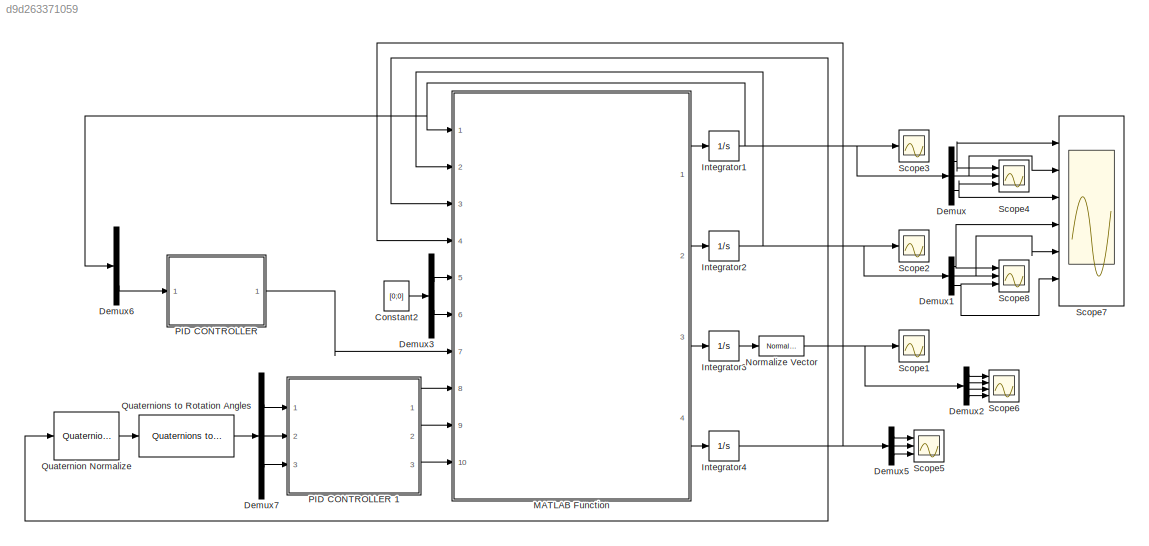
MODEL slx_d9d263371059
KIND model
CONFIG AbsTol = auto
CONFIG EnableMultiTasking = off
CONFIG FixedStep = auto
CONFIG MaxStep = auto
CONFIG MinStep = auto
CONFIG RelTol = 1e-3
CONFIG SampleTimeConstraint = Unconstrained
CONFIG SolverName = VariableStepAuto
CONFIG StartTime = 0.0
CONFIG StopTime = 50
BLOCK [Constant] Constant2
  Value = [0;0]
  VectorParams1D = off
BLOCK [Demux] Demux
  Outputs = 3
  Ports = [1, 3]
BLOCK [Demux] Demux1
  Outputs = 3
  Ports = [1, 3]
BLOCK [Demux] Demux2
  Ports = [1, 4]
BLOCK [Demux] Demux3
  Outputs = 2
  Ports = [1, 2]
BLOCK [Demux] Demux5
  Outputs = 3
  Ports = [1, 3]
BLOCK [Demux] Demux6
  Outputs = 3
  Ports = [1, 3]
BLOCK [Demux] Demux7
  Outputs = 3
  Ports = [1, 3]
BLOCK [Integrator] Integrator1
  InitialCondition = [0;0;0]
  Ports = [1, 1]
BLOCK [Integrator] Integrator2
  InitialCondition = [0;0;0]
  Ports = [1, 1]
BLOCK [Integrator] Integrator3
  InitialCondition = [1;0;0;0]
  Ports = [1, 1]
BLOCK [Integrator] Integrator4
  InitialCondition = [0;0;0]
  Ports = [1, 1]
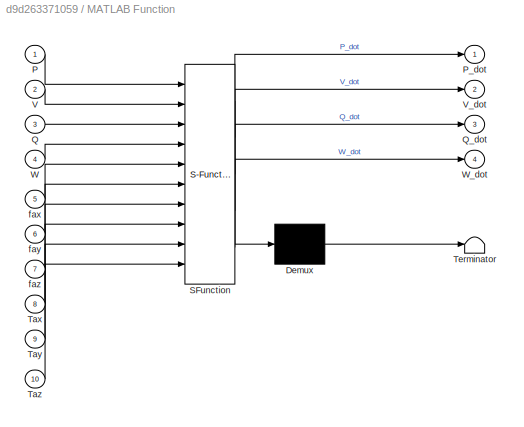
BLOCK [SubSystem] MATLAB Function
  ErrorFcn = Stateflow.Translate.translate
  PermitHierarchicalResolution = ExplicitOnly
  Ports = [10, 4]
  RequestExecContextInheritance = off
  SFBlockType = MATLAB Function
  TreatAsAtomicUnit = on
BLOCK [Demux] MATLAB Function/ Demux 
  Outputs = 1
  Ports = [1, 1]
BLOCK [S-Function] MATLAB Function/ SFunction 
  EnableBusSupport = on
  FunctionName = sf_sfun
  PortCounts = [10 5]
  Ports = [10, 5]
  SFcnIsStateOwnerBlock = off
  SFunctionDeploymentMode = off
  Tag = Stateflow S-Function 2
BLOCK [Terminator] MATLAB Function/ Terminator 
BLOCK [Inport] MATLAB Function/P
BLOCK [Outport] MATLAB Function/P_dot
BLOCK [Inport] MATLAB Function/Q
  Port = 3
BLOCK [Outport] MATLAB Function/Q_dot
  Port = 3
BLOCK [Inport] MATLAB Function/Tax
  Port = 8
BLOCK [Inport] MATLAB Function/Tay
  Port = 9
BLOCK [Inport] MATLAB Function/Taz
  Port = 10
BLOCK [Inport] MATLAB Function/V
  Port = 2
BLOCK [Outport] MATLAB Function/V_dot
  Port = 2
BLOCK [Inport] MATLAB Function/W
  Port = 4
BLOCK [Outport] MATLAB Function/W_dot
  Port = 4
BLOCK [Inport] MATLAB Function/fax
  Port = 5
BLOCK [Inport] MATLAB Function/fay
  Port = 6
BLOCK [Inport] MATLAB Function/faz
  Port = 7
BLOCK [Reference] Normalize Vector  REF=vrlib/Utilities/Normalize Vector
  Ports = [1, 1]
  SourceBlock = vrlib/Utilities/Normalize Vector
  SourceProductBaseCode = SL
  SourceType = Normalize Vector
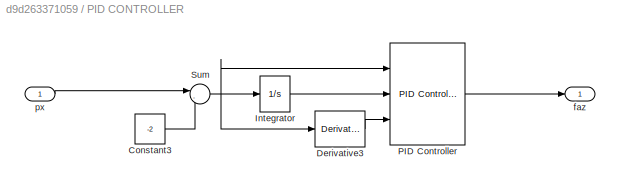
BLOCK [SubSystem] PID CONTROLLER 
  Ports = [1, 1]
  RequestExecContextInheritance = off
BLOCK [Constant] PID CONTROLLER /Constant3
  Value = -2
  VectorParams1D = off
BLOCK [Derivative] PID CONTROLLER /Derivative3
BLOCK [Integrator] PID CONTROLLER /Integrator
  NameLocation = right
  Ports = [1, 1]
BLOCK [Reference] PID CONTROLLER /PID Controller  REF=pid_lib/PID Controller
  Ports = [3, 1]
  SourceBlock = pid_lib/PID Controller
  SourceProductBaseCode = SL
  SourceType = PID 1dof
BLOCK [Sum] PID CONTROLLER /Sum
  Inputs = |-+
  Ports = [2, 1]
BLOCK [Outport] PID CONTROLLER /faz
BLOCK [Inport] PID CONTROLLER /px
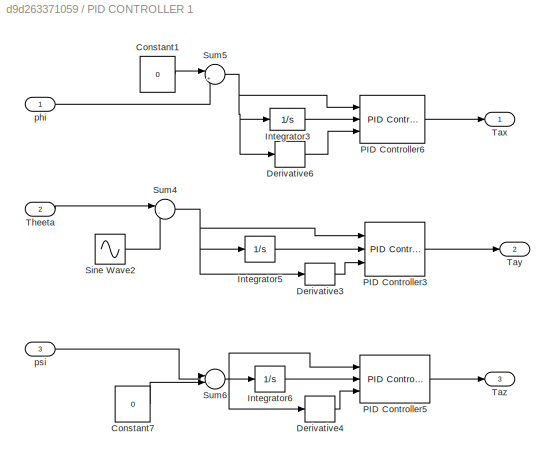
BLOCK [SubSystem] PID CONTROLLER 1
  Ports = [3, 3]
  RequestExecContextInheritance = off
BLOCK [Constant] PID CONTROLLER 1/Constant1
  Value = 0
  VectorParams1D = off
BLOCK [Constant] PID CONTROLLER 1/Constant7
  Value = 0
  VectorParams1D = off
BLOCK [Derivative] PID CONTROLLER 1/Derivative3
BLOCK [Derivative] PID CONTROLLER 1/Derivative4
BLOCK [Derivative] PID CONTROLLER 1/Derivative6
BLOCK [Integrator] PID CONTROLLER 1/Integrator3
  NameLocation = right
  Ports = [1, 1]
BLOCK [Integrator] PID CONTROLLER 1/Integrator5
  NameLocation = right
  Ports = [1, 1]
BLOCK [Integrator] PID CONTROLLER 1/Integrator6
  NameLocation = right
  Ports = [1, 1]
BLOCK [Reference] PID CONTROLLER 1/PID Controller3  REF=pid_lib/PID Controller
  Ports = [3, 1]
  SourceBlock = pid_lib/PID Controller
  SourceProductBaseCode = SL
  SourceType = PID 1dof
BLOCK [Reference] PID CONTROLLER 1/PID Controller5  REF=pid_lib/PID Controller
  Ports = [3, 1]
  SourceBlock = pid_lib/PID Controller
  SourceProductBaseCode = SL
  SourceType = PID 1dof
BLOCK [Reference] PID CONTROLLER 1/PID Controller6  REF=pid_lib/PID Controller
  Ports = [3, 1]
  SourceBlock = pid_lib/PID Controller
  SourceProductBaseCode = SL
  SourceType = PID 1dof
BLOCK [Sin] PID CONTROLLER 1/Sine Wave2
  Amplitude = 0.1
  Frequency = 2*pi*0.1
  Ports = [0, 1]
  SampleTime = 0
BLOCK [Sum] PID CONTROLLER 1/Sum4
  Inputs = |-+
  Ports = [2, 1]
BLOCK [Sum] PID CONTROLLER 1/Sum5
  Inputs = |+-
  Ports = [2, 1]
BLOCK [Sum] PID CONTROLLER 1/Sum6
  Inputs = |-+
  Ports = [2, 1]
BLOCK [Outport] PID CONTROLLER 1/Tax
BLOCK [Outport] PID CONTROLLER 1/Tay
  Port = 2
BLOCK [Outport] PID CONTROLLER 1/Taz
  Port = 3
BLOCK [Inport] PID CONTROLLER 1/Theeta
  Port = 2
BLOCK [Inport] PID CONTROLLER 1/phi
BLOCK [Inport] PID CONTROLLER 1/psi
  Port = 3
BLOCK [Reference] Quaternion Normalize  REF=sharedutil/Quaternion
Normalize
  Ports = [1, 1]
  SourceBlock = sharedutil/Quaternion\nNormalize
  SourceProductBaseCode = AE,PW,DR,MT,UV,VE
  SourceType = Quaternion Normalize
BLOCK [Reference] Quaternions to Rotation Angles  REF=sharedtransform/Quaternions to Rotation Angles
  AttributesFormatString = Rotation Order: %<rotationOrder>
  Ports = [1, 1]
  SourceBlock = sharedtransform/Quaternions to Rotation Angles
  SourceProductBaseCode = AE,PW,DR,MT,UV,VE
  SourceType = Quat2Ang
BLOCK [Scope] Scope1
  Floating = off
  NumInputPorts = 1
  Ports = [1]
  ScopeSpecificationString = Simulink.scopes.TimeScopeBlockCfg('CurrentConfiguration', extmgr.ConfigurationSet(extmgr.Configuration('Core','General UI',true),extmgr.Configuration('Core','Source UI',true),extmgr.Configuration('Sources','WiredSimulink',true,'DataLoggingVariableName','ScopeData1'),extmgr.Configuration('Visuals','Time Domain',true,'SerializedDisplays',{struct('MinYLimReal','-0.18212','MaxYLimReal','1.13135','YLab...<+1440ch>
BLOCK [Scope] Scope2
  Floating = off
  NumInputPorts = 1
  Ports = [1]
  ScopeSpecificationString = Simulink.scopes.TimeScopeBlockCfg('CurrentConfiguration', extmgr.ConfigurationSet(extmgr.Configuration('Core','General UI',true),extmgr.Configuration('Core','Source UI',true),extmgr.Configuration('Sources','WiredSimulink',true,'DataLoggingVariableName','ScopeData2'),extmgr.Configuration('Visuals','Time Domain',true,'SerializedDisplays',{struct('MinYLimReal','-0.71145','MaxYLimReal','0.65564','YLab...<+1404ch>
BLOCK [Scope] Scope3
  Floating = off
  NumInputPorts = 1
  Ports = [1]
  ScopeSpecificationString = Simulink.scopes.TimeScopeBlockCfg('CurrentConfiguration', extmgr.ConfigurationSet(extmgr.Configuration('Core','General UI',true),extmgr.Configuration('Core','Source UI',true),extmgr.Configuration('Sources','WiredSimulink',true,'DataLoggingVariableName','ScopeData3'),extmgr.Configuration('Visuals','Time Domain',true,'SerializedDisplays',{struct('MinYLimReal','-5643296.61537','MaxYLimReal','1883720....<+1478ch>
BLOCK [Scope] Scope4
  Floating = off
  NumInputPorts = 3
  Ports = [3]
  ScopeSpecificationString = Simulink.scopes.TimeScopeBlockCfg('CurrentConfiguration', extmgr.ConfigurationSet(extmgr.Configuration('Core','General UI',true,'FigureColor',[1 1 1]),extmgr.Configuration('Core','Source UI',true),extmgr.Configuration('Sources','WiredSimulink',true,'DataLoggingVariableName','ScopeData4'),extmgr.Configuration('Visuals','Time Domain',true,'SerializedDisplays',{struct('MinYLimReal','-1.85372','MaxYLi...<+3012ch>
BLOCK [Scope] Scope5
  Floating = off
  NumInputPorts = 3
  Ports = [3]
  ScopeSpecificationString = Simulink.scopes.TimeScopeBlockCfg('CurrentConfiguration', extmgr.ConfigurationSet(extmgr.Configuration('Core','General UI',true,'FigureColor',[1 1 1]),extmgr.Configuration('Core','Source UI',true),extmgr.Configuration('Sources','WiredSimulink',true,'DataLoggingVariableName','ScopeData5'),extmgr.Configuration('Visuals','Time Domain',true,'SerializedDisplays',{struct('MinYLimReal','-1.00000','MaxYLi...<+3019ch>
BLOCK [Scope] Scope6
  Floating = off
  NumInputPorts = 4
  Ports = [4]
  ScopeSpecificationString = Simulink.scopes.TimeScopeBlockCfg('CurrentConfiguration', extmgr.ConfigurationSet(extmgr.Configuration('Core','General UI',true,'FigureColor',[1 1 1]),extmgr.Configuration('Core','Source UI',true),extmgr.Configuration('Sources','WiredSimulink',true,'DataLoggingVariableName','ScopeData6'),extmgr.Configuration('Visuals','Time Domain',true,'SerializedDisplays',{struct('MinYLimReal','0.99854','MaxYLim...<+4161ch>
BLOCK [Scope] Scope7
  Floating = off
  NameLocation = top
  NumInputPorts = 6
  Ports = [6]
  ScopeSpecificationString = Simulink.scopes.TimeScopeBlockCfg('CurrentConfiguration', extmgr.ConfigurationSet(extmgr.Configuration('Core','General UI',true,'FigureColor',[1 1 1]),extmgr.Configuration('Core','Source UI',true),extmgr.Configuration('Sources','WiredSimulink',true,'DataLoggingSaveFormat','StructureWithTime','DataLoggingDecimation','1','DataLoggingVariableName','ScopeData7'),extmgr.Configuration('Visuals','Time Do...<+6631ch>
BLOCK [Scope] Scope8
  Floating = off
  NumInputPorts = 3
  Ports = [3]
  ScopeSpecificationString = Simulink.scopes.TimeScopeBlockCfg('CurrentConfiguration', extmgr.ConfigurationSet(extmgr.Configuration('Core','General UI',true,'FigureColor',[1 1 1]),extmgr.Configuration('Core','Source UI',true),extmgr.Configuration('Sources','WiredSimulink',true),extmgr.Configuration('Visuals','Time Domain',true,'SerializedDisplays',{struct('MinYLimReal','-0.27063','MaxYLimReal','1.73665','YLabelReal','','MinYL...<+2982ch>
LINE Constant2:1 -> Demux3:1
NET Demux1:1 -> Scope7:4, Scope8:1
NET Demux1:2 -> Scope7:5, Scope8:2
NET Demux1:3 -> Scope7:6, Scope8:3
LINE Demux2:1 -> Scope6:1
LINE Demux2:2 -> Scope6:2
LINE Demux2:3 -> Scope6:3
LINE Demux2:4 -> Scope6:4
LINE Demux3:1 -> MATLAB Function:5
LINE Demux3:2 -> MATLAB Function:6
LINE Demux5:1 -> Scope5:1
LINE Demux5:2 -> Scope5:2
LINE Demux5:3 -> Scope5:3
LINE Demux6:3 -> PID CONTROLLER :1
LINE Demux7:1 -> PID CONTROLLER 1:1
LINE Demux7:2 -> PID CONTROLLER 1:2
LINE Demux7:3 -> PID CONTROLLER 1:3
NET Demux:1 -> Scope4:1, Scope7:1
NET Demux:2 -> Scope4:2, Scope7:2
NET Demux:3 -> Scope4:3, Scope7:3
NET Integrator1:1 -> Demux6:1, Demux:1, MATLAB Function:1, Scope3:1
NET Integrator2:1 -> Demux1:1, MATLAB Function:2, Scope2:1
LINE Integrator3:1 -> Normalize Vector:1
NET Integrator4:1 -> Demux5:1, MATLAB Function:4
LINE MATLAB Function:1 -> Integrator1:1
LINE MATLAB Function:2 -> Integrator2:1
LINE MATLAB Function:3 -> Integrator3:1
LINE MATLAB Function:4 -> Integrator4:1
NET Normalize Vector:1 -> Demux2:1, MATLAB Function:3, Quaternion Normalize:1, Scope1:1
LINE PID CONTROLLER /Constant3:1 -> PID CONTROLLER /Sum:2
LINE PID CONTROLLER /Derivative3:1 -> PID CONTROLLER /PID Controller:3
LINE PID CONTROLLER /Integrator:1 -> PID CONTROLLER /PID Controller:2
LINE PID CONTROLLER /PID Controller:1 -> PID CONTROLLER /faz:1
NET PID CONTROLLER /Sum:1 -> PID CONTROLLER /Derivative3:1, PID CONTROLLER /Integrator:1, PID CONTROLLER /PID Controller:1
LINE PID CONTROLLER /px:1 -> PID CONTROLLER /Sum:1
LINE PID CONTROLLER 1/Constant1:1 -> PID CONTROLLER 1/Sum5:1
LINE PID CONTROLLER 1/Constant7:1 -> PID CONTROLLER 1/Sum6:2
LINE PID CONTROLLER 1/Derivative3:1 -> PID CONTROLLER 1/PID Controller3:3
LINE PID CONTROLLER 1/Derivative4:1 -> PID CONTROLLER 1/PID Controller5:3
LINE PID CONTROLLER 1/Derivative6:1 -> PID CONTROLLER 1/PID Controller6:3
LINE PID CONTROLLER 1/Integrator3:1 -> PID CONTROLLER 1/PID Controller6:2
LINE PID CONTROLLER 1/Integrator5:1 -> PID CONTROLLER 1/PID Controller3:2
LINE PID CONTROLLER 1/Integrator6:1 -> PID CONTROLLER 1/PID Controller5:2
LINE PID CONTROLLER 1/PID Controller3:1 -> PID CONTROLLER 1/Tay:1
LINE PID CONTROLLER 1/PID Controller5:1 -> PID CONTROLLER 1/Taz:1
LINE PID CONTROLLER 1/PID Controller6:1 -> PID CONTROLLER 1/Tax:1
LINE PID CONTROLLER 1/Sine Wave2:1 -> PID CONTROLLER 1/Sum4:2
NET PID CONTROLLER 1/Sum4:1 -> PID CONTROLLER 1/Derivative3:1, PID CONTROLLER 1/Integrator5:1, PID CONTROLLER 1/PID Controller3:1
NET PID CONTROLLER 1/Sum5:1 -> PID CONTROLLER 1/Derivative6:1, PID CONTROLLER 1/Integrator3:1, PID CONTROLLER 1/PID Controller6:1
NET PID CONTROLLER 1/Sum6:1 -> PID CONTROLLER 1/Derivative4:1, PID CONTROLLER 1/Integrator6:1, PID CONTROLLER 1/PID Controller5:1
LINE PID CONTROLLER 1/Theeta:1 -> PID CONTROLLER 1/Sum4:1
LINE PID CONTROLLER 1/phi:1 -> PID CONTROLLER 1/Sum5:2
LINE PID CONTROLLER 1/psi:1 -> PID CONTROLLER 1/Sum6:1
LINE PID CONTROLLER 1:1 -> MATLAB Function:8
LINE PID CONTROLLER 1:2 -> MATLAB Function:9
LINE PID CONTROLLER 1:3 -> MATLAB Function:10
LINE PID CONTROLLER :1 -> MATLAB Function:7
LINE Quaternion Normalize:1 -> Quaternions to Rotation Angles:1
LINE Quaternions to Rotation Angles:1 -> Demux7:1
note: NET lines group one-source signal fan-out (src -> all destinations, sorted); 1:1 wires keep LINE
CHART MATLAB Function states=1 transitions=1
  STATE_LABEL 'eML_blk_kernel()'
  STATE_LABEL 'SCRIPT:\nfunction [P_dot,V_dot,Q_dot,W_dot]= fcn(P,V,Q,W,fax,fay,faz,Tax,Tay,Taz)\nclc\nm=5;\n\n%%% phi=Q(2); % theta=Q(3); % psi=Q(4);\n\n% Rz=[cos(psi) sin(psi) 0;-sin(psi)) cos(psi) 0;0 0 1];\n% Rx=[1 0 0;0 cos(phi) sin(phi);0 -sin(phi) cos(phi)];\n% Ry=[cos(theta) 0 -sin(theta);0 1 0;sin(theta) 0 cos(theta)];\n\nRz=[cos(Q(4)) sin(Q(4)) 0; -sin(Q(4)) cos(Q(4)) 0; 0 0 1];\nRx=[1 0 0; 0 cos(Q(2)) sin(Q(2)); ...<+982ch>'
CHART  states=0 transitions=0
